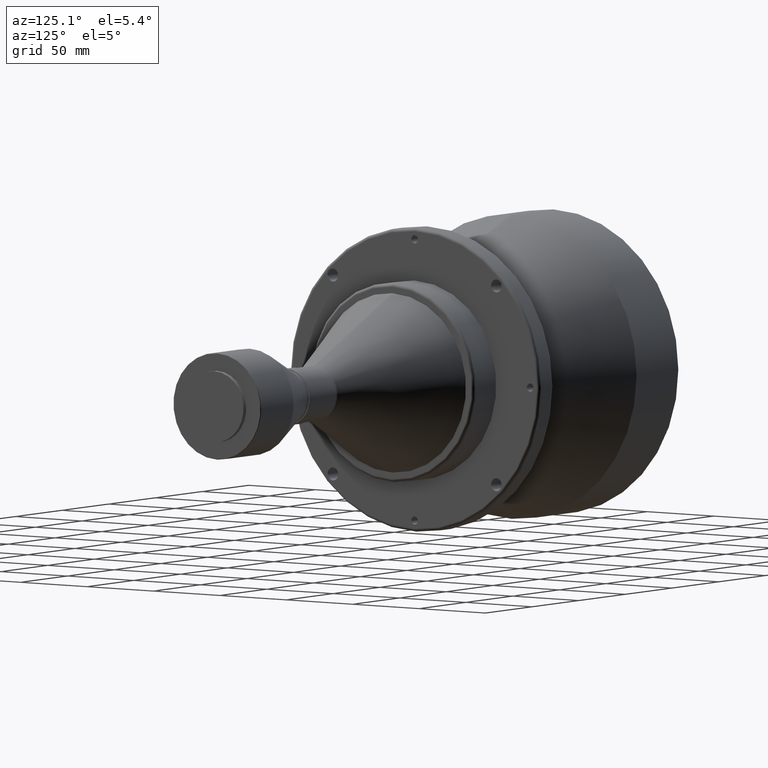
[diagram: clean part render]
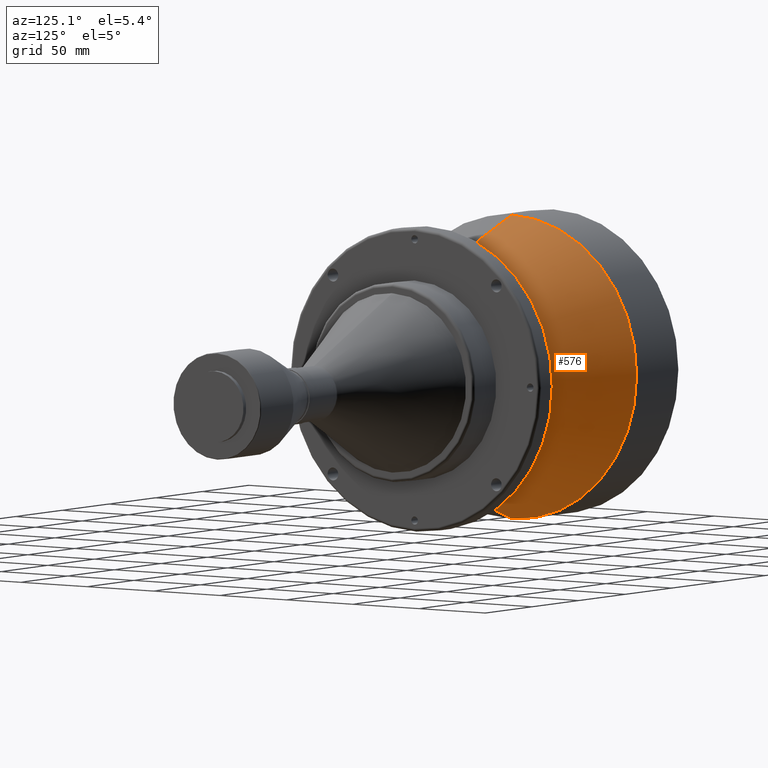
[diagram: same view with one face highlighted and labeled with its STEP entity id]
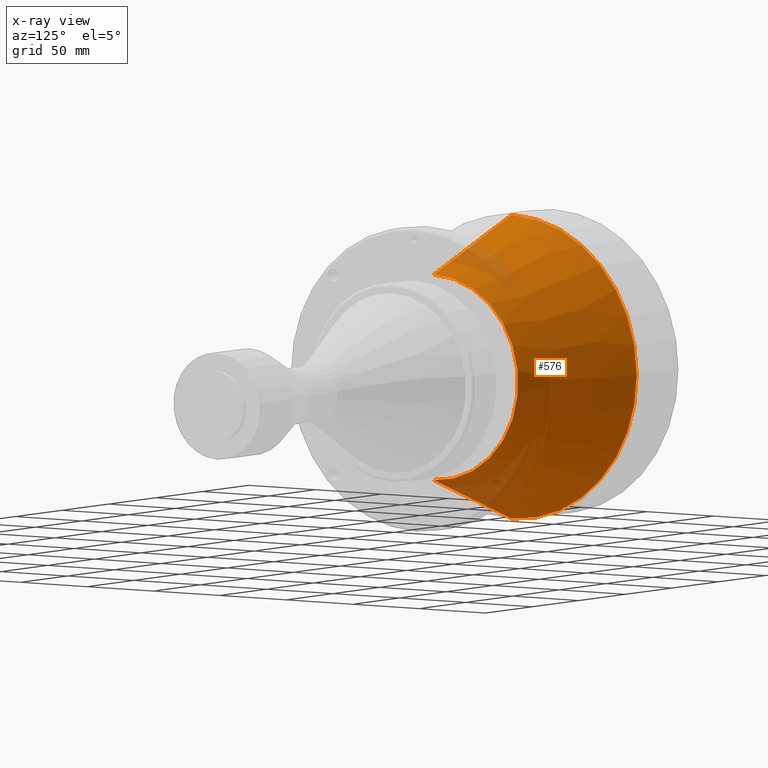
[diagram: x-ray of the same camera — body ghosted, the highlighted face saturated]
A machine part, auxiliary view. The second image highlights one B-rep face of the part: STEP entity #576.
The next image is the same camera in x-ray: the body ghosted, the highlighted face saturated — about 9% of this face is hidden behind the body in this view.
In plain terms, the highlighted conical surface has half-angle 20 deg.
Its self-contained STEP definition (entity closure, byte-faithful):
#29 = LINE ( 'NONE', #1010, #411 ) ;
#98 = VERTEX_POINT ( 'NONE', #743 ) ;
#273 = ORIENTED_EDGE ( 'NONE', *, *, #1599, .T. ) ;
#302 = DIRECTION ( 'NONE',  ( -0.9396926207859082100, 0.0000000000000000000, 0.3420201433256693800 ) ) ;
#339 = DIRECTION ( 'NONE',  ( 0.0000000000000000000, 0.0000000000000000000, 1.000000000000000000 ) ) ;
#346 = AXIS2_PLACEMENT_3D ( 'NONE', #1660, #802, #339 ) ;
#389 = DIRECTION ( 'NONE',  ( 0.0000000000000000000, 0.0000000000000000000, 1.000000000000000000 ) ) ;
#411 = VECTOR ( 'NONE', #302, 1000.000000000000100 ) ;
#419 = CARTESIAN_POINT ( 'NONE',  ( 45.00000000000000000, 1.151167991198512300E-014, -94.00000000000001400 ) ) ;
#513 = EDGE_CURVE ( 'NONE', #1453, #1291, #1081, .T. ) ;
#547 = DIRECTION ( 'NONE',  ( 0.0000000000000000000, 0.0000000000000000000, 1.000000000000000000 ) ) ;
#576 = ADVANCED_FACE ( 'NONE', ( #837 ), #990, .T. ) ;
#608 = VECTOR ( 'NONE', #1487, 1000.000000000000100 ) ;
#736 = ORIENTED_EDGE ( 'NONE', *, *, #1489, .F. ) ;
#743 = CARTESIAN_POINT ( 'NONE',  ( 128.6319194266972900, 0.0000000000000000000, 63.56047069413277500 ) ) ;
#802 = DIRECTION ( 'NONE',  ( -1.000000000000000000, -0.0000000000000000000, -0.0000000000000000000 ) ) ;
#837 = FACE_OUTER_BOUND ( 'NONE', #1357, .T. ) ;
#845 = ORIENTED_EDGE ( 'NONE', *, *, #920, .T. ) ;
#868 = AXIS2_PLACEMENT_3D ( 'NONE', #1388, #1408, #547 ) ;
#920 = EDGE_CURVE ( 'NONE', #1089, #1291, #1669, .T. ) ;
#983 = CARTESIAN_POINT ( 'NONE',  ( 128.6319194266972900, 0.0000000000000000000, 0.0000000000000000000 ) ) ;
#990 = CONICAL_SURFACE ( 'NONE', #1279, 63.56047069413277500, 0.3490658503988666200 ) ;
#1003 = CARTESIAN_POINT ( 'NONE',  ( 128.6319194266972900, 7.783912698786885200E-015, -63.56047069413277500 ) ) ;
#1010 = CARTESIAN_POINT ( 'NONE',  ( 128.6319194266972900, 0.0000000000000000000, 63.56047069413277500 ) ) ;
#1081 = CIRCLE ( 'NONE', #868, 94.00000000000001400 ) ;
#1089 = VERTEX_POINT ( 'NONE', #1003 ) ;
#1126 = DIRECTION ( 'NONE',  ( -1.000000000000000000, -0.0000000000000000000, -0.0000000000000000000 ) ) ;
#1146 = CARTESIAN_POINT ( 'NONE',  ( 45.00000000000000000, 0.0000000000000000000, 94.00000000000001400 ) ) ;
#1198 = CIRCLE ( 'NONE', #346, 63.56047069413277500 ) ;
#1279 = AXIS2_PLACEMENT_3D ( 'NONE', #983, #1126, #389 ) ;
#1291 = VERTEX_POINT ( 'NONE', #419 ) ;
#1357 = EDGE_LOOP ( 'NONE', ( #273, #845, #1575, #736 ) ) ;
#1388 = CARTESIAN_POINT ( 'NONE',  ( 45.00000000000000000, 0.0000000000000000000, 0.0000000000000000000 ) ) ;
#1408 = DIRECTION ( 'NONE',  ( -1.000000000000000000, -0.0000000000000000000, -0.0000000000000000000 ) ) ;
#1453 = VERTEX_POINT ( 'NONE', #1146 ) ;
#1487 = DIRECTION ( 'NONE',  ( -0.9396926207859082100, 4.188538737677000400E-017, -0.3420201433256693800 ) ) ;
#1489 = EDGE_CURVE ( 'NONE', #98, #1453, #29, .T. ) ;
#1498 = CARTESIAN_POINT ( 'NONE',  ( 128.6319194266972900, 7.783912698786885200E-015, -63.56047069413277500 ) ) ;
#1575 = ORIENTED_EDGE ( 'NONE', *, *, #513, .F. ) ;
#1599 = EDGE_CURVE ( 'NONE', #98, #1089, #1198, .T. ) ;
#1660 = CARTESIAN_POINT ( 'NONE',  ( 128.6319194266972900, 0.0000000000000000000, 0.0000000000000000000 ) ) ;
#1669 = LINE ( 'NONE', #1498, #608 ) ;